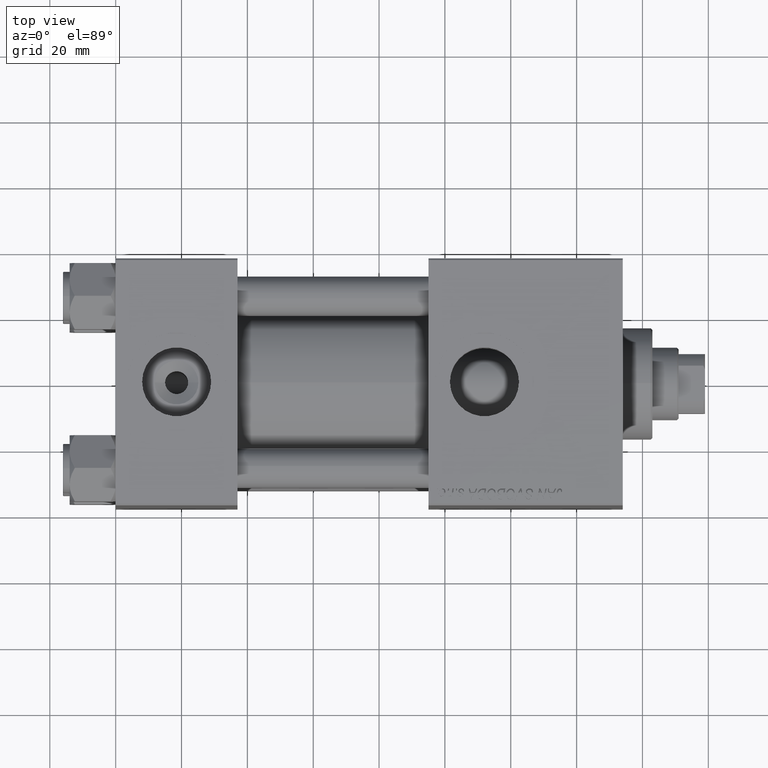
[diagram: clean part render]
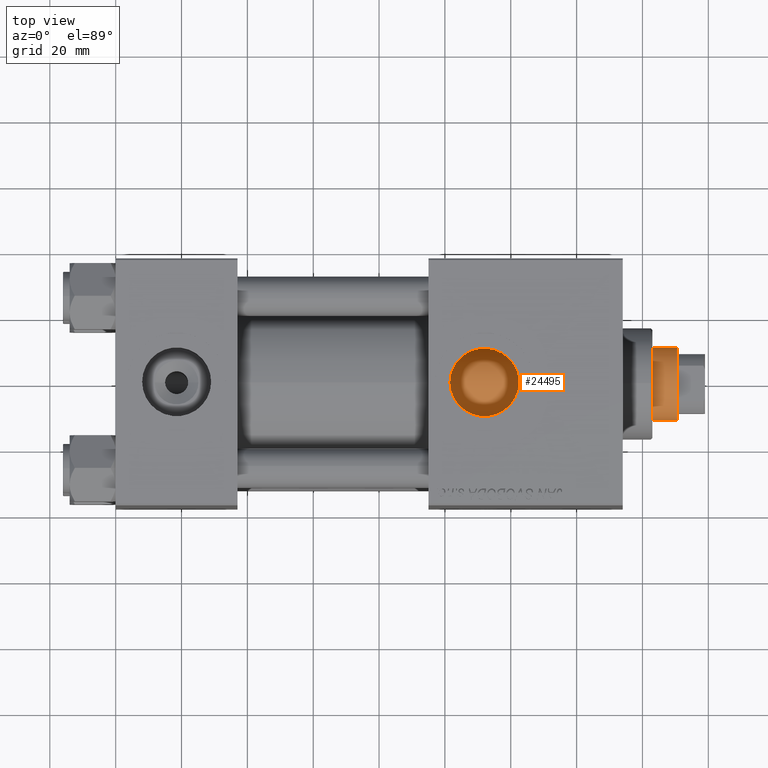
[diagram: same view with one face highlighted and labeled with its STEP entity id]
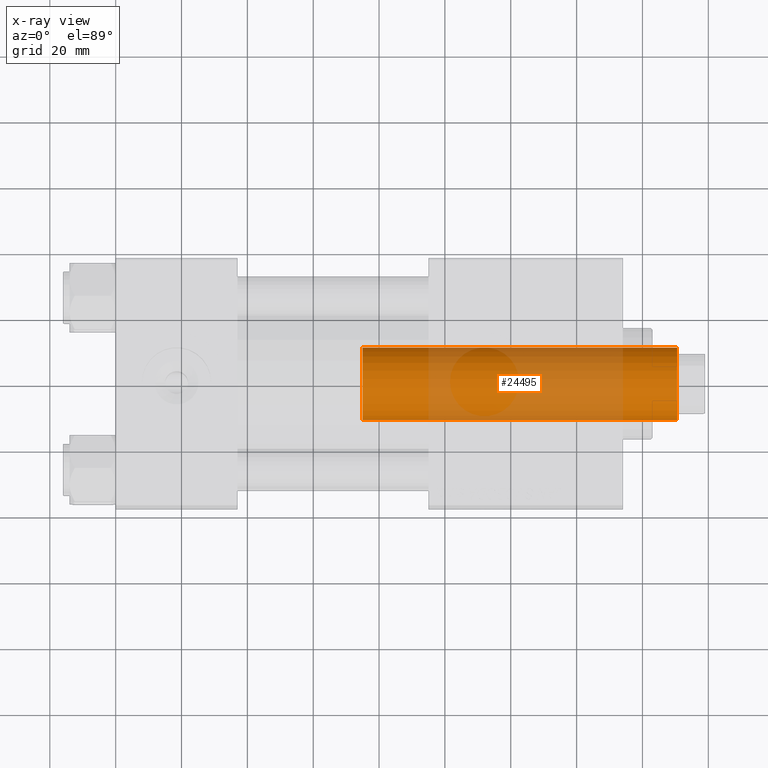
[diagram: x-ray of the same camera — body ghosted, the highlighted face saturated]
A machine part, top view. The second image highlights one B-rep face of the part: STEP entity #24495.
The next image is the same camera in x-ray: the body ghosted, the highlighted face saturated — about 46% of this face is hidden behind the body in this view.
In plain terms, the highlighted cylindrical surface (edge-blend (fillet) strip) has radius 11 mm, axis along (-1, 0, 0).
Its self-contained STEP definition (entity closure, byte-faithful):
#178 = CARTESIAN_POINT ( 'NONE',  ( 11.00000000000000000, 1.347111479062088405E-15, 133.5000000000000000 ) ) ;
#665 = EDGE_CURVE ( 'NONE', #8740, #34014, #38195, .T. ) ;
#803 = EDGE_CURVE ( 'NONE', #8740, #9536, #11507, .T. ) ;
#1778 = CYLINDRICAL_SURFACE ( 'NONE', #17330, 11.00000000000000000 ) ;
#3340 = AXIS2_PLACEMENT_3D ( 'NONE', #18621, #49346, #30321 ) ;
#3925 = ORIENTED_EDGE ( 'NONE', *, *, #23538, .T. ) ;
#5278 = CIRCLE ( 'NONE', #42559, 11.00000000000000000 ) ;
#5864 = VERTEX_POINT ( 'NONE', #44850 ) ;
#8203 = VECTOR ( 'NONE', #23950, 1000.000000000000000 ) ;
#8497 = DIRECTION ( 'NONE',  ( 1.000000000000000000, 0.000000000000000000, 0.000000000000000000 ) ) ;
#8740 = VERTEX_POINT ( 'NONE', #178 ) ;
#9536 = VERTEX_POINT ( 'NONE', #15475 ) ;
#10563 = CARTESIAN_POINT ( 'NONE',  ( 0.000000000000000000, 0.000000000000000000, 134.0000000000000000 ) ) ;
#10736 = ORIENTED_EDGE ( 'NONE', *, *, #665, .T. ) ;
#11122 = CARTESIAN_POINT ( 'NONE',  ( -11.00000000000000000, 0.000000000000000000, 134.0000000000000000 ) ) ;
#11507 = LINE ( 'NONE', #12512, #8203 ) ;
#12512 = CARTESIAN_POINT ( 'NONE',  ( 11.00000000000000000, 1.347111479062088405E-15, 134.0000000000000000 ) ) ;
#12862 = VECTOR ( 'NONE', #30166, 1000.000000000000000 ) ;
#15475 = CARTESIAN_POINT ( 'NONE',  ( 11.00000000000000000, 1.347111479062088405E-15, 38.00000000000000000 ) ) ;
#17330 = AXIS2_PLACEMENT_3D ( 'NONE', #10563, #24612, #49397 ) ;
#18621 = CARTESIAN_POINT ( 'NONE',  ( 0.000000000000000000, 0.000000000000000000, 133.5000000000000000 ) ) ;
#21250 = CARTESIAN_POINT ( 'NONE',  ( -11.00000000000000000, 0.000000000000000000, 133.5000000000000000 ) ) ;
#22031 = ORIENTED_EDGE ( 'NONE', *, *, #40725, .T. ) ;
#22806 = EDGE_LOOP ( 'NONE', ( #23847, #10736, #22031, #3925 ) ) ;
#23538 = EDGE_CURVE ( 'NONE', #5864, #9536, #5278, .T. ) ;
#23847 = ORIENTED_EDGE ( 'NONE', *, *, #803, .F. ) ;
#23950 = DIRECTION ( 'NONE',  ( -0.000000000000000000, -0.000000000000000000, -1.000000000000000000 ) ) ;
#24495 = ADVANCED_FACE ( 'NONE', ( #40359 ), #1778, .T. ) ;
#24612 = DIRECTION ( 'NONE',  ( -0.000000000000000000, -0.000000000000000000, -1.000000000000000000 ) ) ;
#26854 = LINE ( 'NONE', #11122, #12862 ) ;
#30166 = DIRECTION ( 'NONE',  ( -0.000000000000000000, -0.000000000000000000, -1.000000000000000000 ) ) ;
#30321 = DIRECTION ( 'NONE',  ( 1.000000000000000000, 0.000000000000000000, 0.000000000000000000 ) ) ;
#34014 = VERTEX_POINT ( 'NONE', #21250 ) ;
#38195 = CIRCLE ( 'NONE', #3340, 11.00000000000000000 ) ;
#40359 = FACE_OUTER_BOUND ( 'NONE', #22806, .T. ) ;
#40725 = EDGE_CURVE ( 'NONE', #34014, #5864, #26854, .T. ) ;
#42559 = AXIS2_PLACEMENT_3D ( 'NONE', #43521, #43262, #8497 ) ;
#43262 = DIRECTION ( 'NONE',  ( 0.000000000000000000, 0.000000000000000000, 1.000000000000000000 ) ) ;
#43521 = CARTESIAN_POINT ( 'NONE',  ( 0.000000000000000000, 0.000000000000000000, 38.00000000000000000 ) ) ;
#44850 = CARTESIAN_POINT ( 'NONE',  ( -11.00000000000000000, 0.000000000000000000, 38.00000000000000000 ) ) ;
#49346 = DIRECTION ( 'NONE',  ( 0.000000000000000000, 0.000000000000000000, -1.000000000000000000 ) ) ;
#49397 = DIRECTION ( 'NONE',  ( -1.000000000000000000, 0.000000000000000000, 0.000000000000000000 ) ) ;